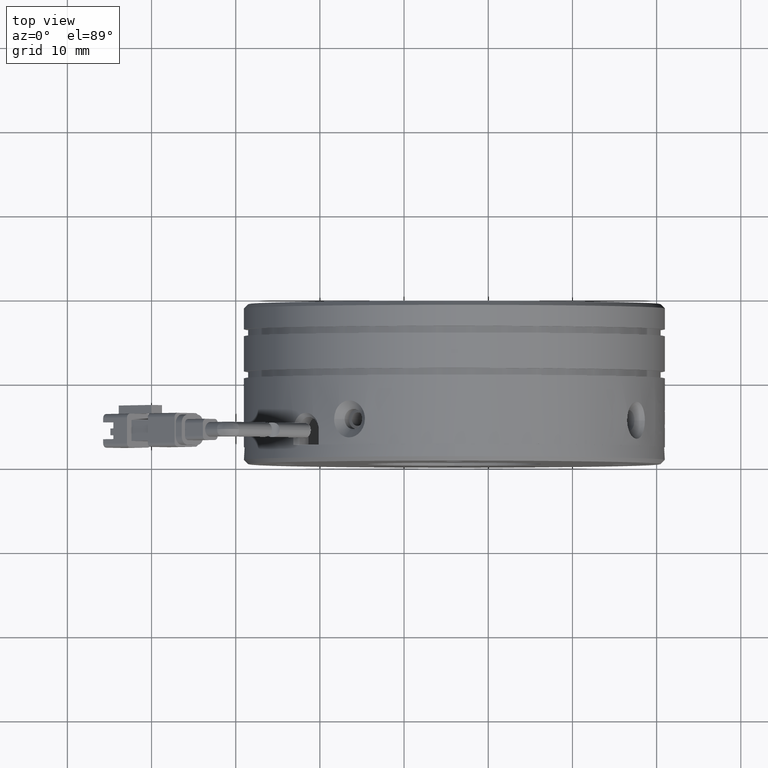
[diagram: clean part render]
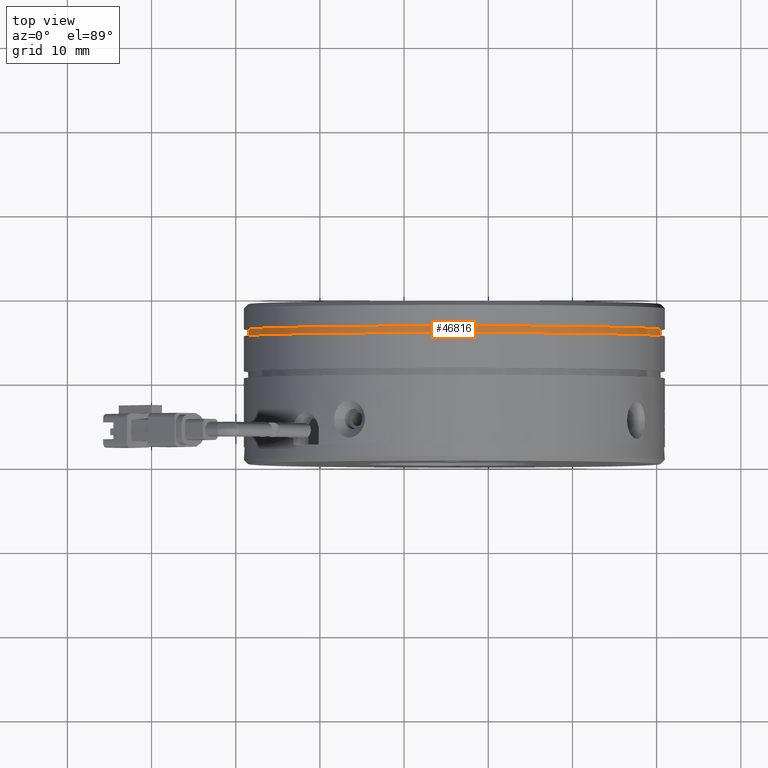
[diagram: same view with one face highlighted and labeled with its STEP entity id]
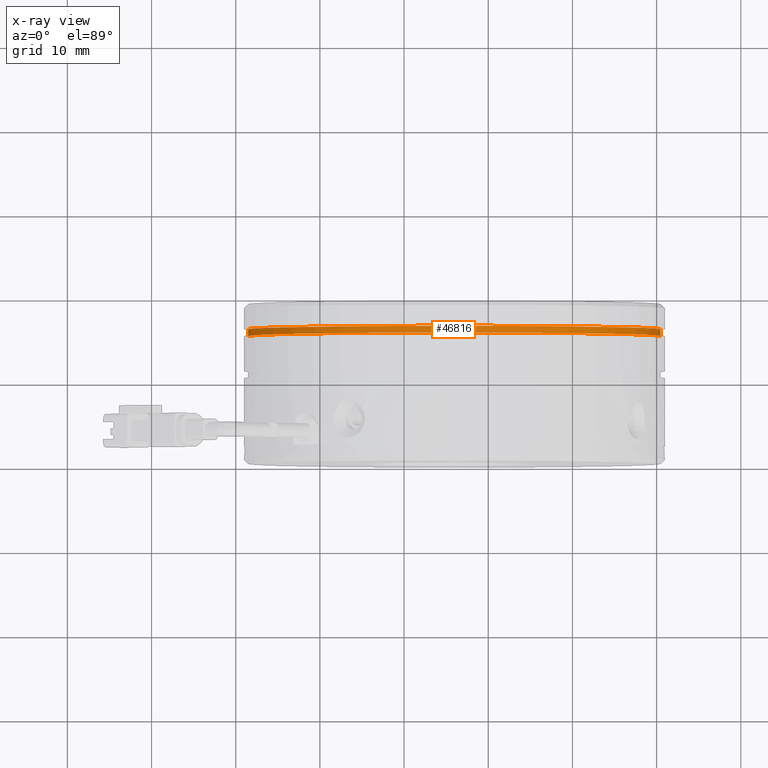
[diagram: x-ray of the same camera — body ghosted, the highlighted face saturated]
A machine part, top view. The second image highlights one B-rep face of the part: STEP entity #46816.
The next image is the same camera in x-ray: the body ghosted, the highlighted face saturated — about 0% of this face is hidden behind the body in this view.
In plain terms, the highlighted cylindrical surface (partial cylindrical patch) has radius 24.5 mm, axis along (0, 1, -0).
Its self-contained STEP definition (entity closure, byte-faithful):
#2443 = VECTOR ( 'NONE', #43946, 1000.000000000000000 ) ;
#4493 = VERTEX_POINT ( 'NONE', #28240 ) ;
#6652 = EDGE_LOOP ( 'NONE', ( #51985, #54241, #54767, #57633 ) ) ;
#13392 = CIRCLE ( 'NONE', #60202, 24.50000000000000000 ) ;
#13456 = DIRECTION ( 'NONE',  ( -1.000000000000000000, 0.0000000000000000000, -2.168404344971005700E-019 ) ) ;
#15590 = DIRECTION ( 'NONE',  ( -0.0000000000000000000, -1.000000000000000000, 0.0000000000000000000 ) ) ;
#19755 = VERTEX_POINT ( 'NONE', #39597 ) ;
#21996 = VERTEX_POINT ( 'NONE', #39745 ) ;
#23390 = DIRECTION ( 'NONE',  ( 0.0000000000000000000, 1.000000000000000000, -0.0000000000000000000 ) ) ;
#23624 = CYLINDRICAL_SURFACE ( 'NONE', #24337, 24.50000000000000000 ) ;
#24337 = AXIS2_PLACEMENT_3D ( 'NONE', #56050, #27411, #13456 ) ;
#27411 = DIRECTION ( 'NONE',  ( 0.0000000000000000000, 1.000000000000000000, -0.0000000000000000000 ) ) ;
#27425 = CARTESIAN_POINT ( 'NONE',  ( -4.025818638713078100, 15.36823414706071000, 3.557538378468061400E-016 ) ) ;
#28240 = CARTESIAN_POINT ( 'NONE',  ( -28.52581863871307600, 15.36823414706071000, 3.504412472016271700E-016 ) ) ;
#32008 = EDGE_CURVE ( 'NONE', #4493, #60939, #13392, .T. ) ;
#32051 = CIRCLE ( 'NONE', #46782, 24.50000000000000000 ) ;
#32258 = DIRECTION ( 'NONE',  ( -1.000000000000000000, 0.0000000000000000000, -2.168404344971005700E-019 ) ) ;
#32779 = VECTOR ( 'NONE', #23390, 1000.000000000000000 ) ;
#36173 = EDGE_CURVE ( 'NONE', #60939, #21996, #56917, .T. ) ;
#39119 = LINE ( 'NONE', #48793, #2443 ) ;
#39597 = CARTESIAN_POINT ( 'NONE',  ( -28.52581863871307600, 16.16823414706071200, 3.504412472016271700E-016 ) ) ;
#39745 = CARTESIAN_POINT ( 'NONE',  ( 20.47418136128692400, 16.16823414706071200, 3.361451086403000600E-015 ) ) ;
#43946 = DIRECTION ( 'NONE',  ( 0.0000000000000000000, 1.000000000000000000, -0.0000000000000000000 ) ) ;
#44338 = CARTESIAN_POINT ( 'NONE',  ( -4.025818638713078100, 16.16823414706071200, 3.557538378468061400E-016 ) ) ;
#45799 = EDGE_CURVE ( 'NONE', #21996, #19755, #32051, .T. ) ;
#46782 = AXIS2_PLACEMENT_3D ( 'NONE', #44338, #15590, #49173 ) ;
#46816 = ADVANCED_FACE ( 'NONE', ( #53777 ), #23624, .T. ) ;
#48793 = CARTESIAN_POINT ( 'NONE',  ( -28.52581863871307600, 15.96823414706070900, 3.504412472016271700E-016 ) ) ;
#49173 = DIRECTION ( 'NONE',  ( -1.000000000000000000, 0.0000000000000000000, -2.168404344971005700E-019 ) ) ;
#49847 = EDGE_CURVE ( 'NONE', #4493, #19755, #39119, .T. ) ;
#51985 = ORIENTED_EDGE ( 'NONE', *, *, #32008, .T. ) ;
#53777 = FACE_OUTER_BOUND ( 'NONE', #6652, .T. ) ;
#54241 = ORIENTED_EDGE ( 'NONE', *, *, #36173, .T. ) ;
#54767 = ORIENTED_EDGE ( 'NONE', *, *, #45799, .T. ) ;
#54995 = CARTESIAN_POINT ( 'NONE',  ( 20.47418136128692400, 15.36823414706071000, 3.361451086403000600E-015 ) ) ;
#56050 = CARTESIAN_POINT ( 'NONE',  ( -4.025818638713078100, 15.96823414706070900, 3.557538378468061400E-016 ) ) ;
#56917 = LINE ( 'NONE', #57034, #32779 ) ;
#57034 = CARTESIAN_POINT ( 'NONE',  ( 20.47418136128692400, 15.96823414706070900, 3.361451086403000600E-015 ) ) ;
#57633 = ORIENTED_EDGE ( 'NONE', *, *, #49847, .F. ) ;
#60202 = AXIS2_PLACEMENT_3D ( 'NONE', #27425, #61070, #32258 ) ;
#60939 = VERTEX_POINT ( 'NONE', #54995 ) ;
#61070 = DIRECTION ( 'NONE',  ( 0.0000000000000000000, 1.000000000000000000, -0.0000000000000000000 ) ) ;